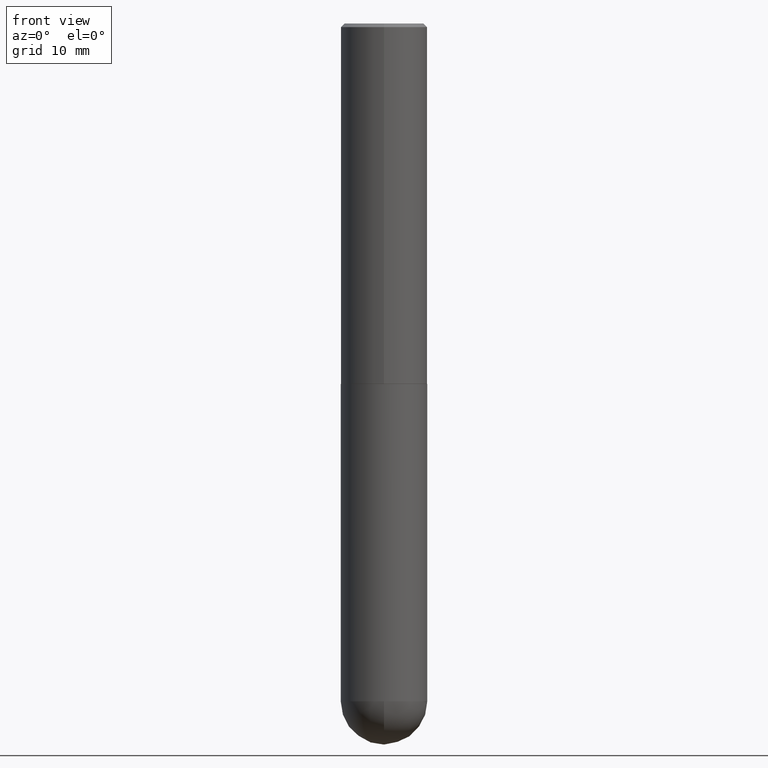
[diagram: clean part render]
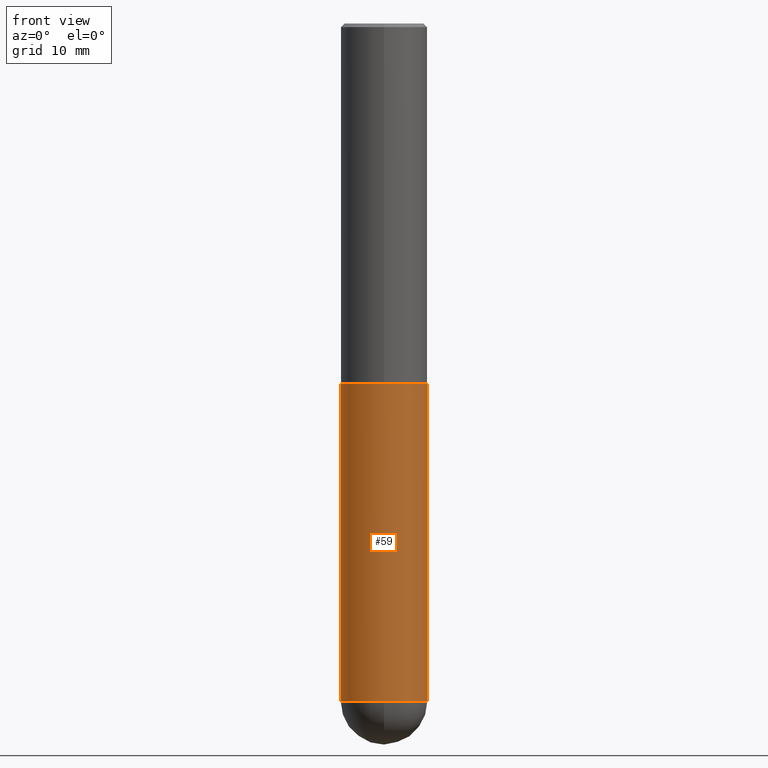
[diagram: same view with one face highlighted and labeled with its STEP entity id]
A machine part, front view. The second image highlights one B-rep face of the part: STEP entity #59.
In plain terms, the highlighted cylindrical surface (partial cylindrical patch) has radius 5.9995 mm, axis along (-0, 0, 1).
Its self-contained STEP definition (entity closure, byte-faithful):
#13 = DIRECTION ( 'NONE',  ( 1.000000000000000000, -6.982962677686265133E-15, 0.000000000000000000 ) ) ;
#36 = CARTESIAN_POINT ( 'NONE',  ( 9.050190957929953666E-29, -1.292127413879071357E-14, -3.700800000000000090 ) ) ;
#40 = CARTESIAN_POINT ( 'NONE',  ( -0.2361999999999999933, 1.678301941865356591E-15, -1.161852468318208757E-29 ) ) ;
#44 = DIRECTION ( 'NONE',  ( -2.445468806185136597E-29, 3.491481338843145583E-15, 1.000000000000000000 ) ) ;
#56 = VERTEX_POINT ( 'NONE', #347 ) ;
#59 = ADVANCED_FACE ( 'NONE', ( #346 ), #378, .T. ) ;
#65 = DIRECTION ( 'NONE',  ( 1.000000000000000000, -6.982962677686266711E-15, 4.876176775795936353E-29 ) ) ;
#72 = CARTESIAN_POINT ( 'NONE',  ( 0.2361999999999999933, -1.649375784469496131E-15, 1.151752954443000088E-29 ) ) ;
#78 = EDGE_CURVE ( 'NONE', #270, #56, #364, .T. ) ;
#91 = CARTESIAN_POINT ( 'NONE',  ( 0.000000000000000000, 0.000000000000000000, 0.000000000000000000 ) ) ;
#99 = CIRCLE ( 'NONE', #121, 0.2361999999999999933 ) ;
#121 = AXIS2_PLACEMENT_3D ( 'NONE', #266, #289, #13 ) ;
#122 = EDGE_CURVE ( 'NONE', #195, #161, #249, .T. ) ;
#143 = ORIENTED_EDGE ( 'NONE', *, *, #78, .T. ) ;
#157 = AXIS2_PLACEMENT_3D ( 'NONE', #36, #341, #384 ) ;
#161 = VERTEX_POINT ( 'NONE', #348 ) ;
#168 = VECTOR ( 'NONE', #329, 39.37007874015748143 ) ;
#175 = EDGE_CURVE ( 'NONE', #161, #200, #193, .T. ) ;
#186 = DIRECTION ( 'NONE',  ( 1.000000000000000000, -6.982962677686269077E-15, 0.000000000000000000 ) ) ;
#193 = CIRCLE ( 'NONE', #288, 0.2361999999999999933 ) ;
#195 = VERTEX_POINT ( 'NONE', #228 ) ;
#200 = VERTEX_POINT ( 'NONE', #361 ) ;
#211 = DIRECTION ( 'NONE',  ( -2.445468806185136597E-29, 3.491481338843145583E-15, 1.000000000000000000 ) ) ;
#214 = DIRECTION ( 'NONE',  ( -2.445468806185136877E-29, 3.491481338843145188E-15, 1.000000000000000000 ) ) ;
#220 = CARTESIAN_POINT ( 'NONE',  ( 4.813905344975441835E-29, -6.872981015512731707E-15, -1.968500000000000139 ) ) ;
#223 = CARTESIAN_POINT ( 'NONE',  ( -1.678301941865268633E-15, -0.2362000000000132882, -3.700799999999998757 ) ) ;
#228 = CARTESIAN_POINT ( 'NONE',  ( -0.2361999999999999933, -8.218825635286368613E-15, -3.700800000000000090 ) ) ;
#238 = ORIENTED_EDGE ( 'NONE', *, *, #351, .T. ) ;
#241 = ORIENTED_EDGE ( 'NONE', *, *, #175, .F. ) ;
#249 = LINE ( 'NONE', #40, #400 ) ;
#254 = ORIENTED_EDGE ( 'NONE', *, *, #313, .T. ) ;
#266 = CARTESIAN_POINT ( 'NONE',  ( 9.050190957929953666E-29, -1.292127413879071357E-14, -3.700800000000000090 ) ) ;
#270 = VERTEX_POINT ( 'NONE', #223 ) ;
#287 = LINE ( 'NONE', #72, #168 ) ;
#288 = AXIS2_PLACEMENT_3D ( 'NONE', #220, #44, #186 ) ;
#289 = DIRECTION ( 'NONE',  ( -2.445468806185136597E-29, 3.491481338843145583E-15, 1.000000000000000000 ) ) ;
#293 = EDGE_LOOP ( 'NONE', ( #318, #238, #143, #254, #241 ) ) ;
#313 = EDGE_CURVE ( 'NONE', #56, #200, #287, .T. ) ;
#318 = ORIENTED_EDGE ( 'NONE', *, *, #122, .F. ) ;
#326 = AXIS2_PLACEMENT_3D ( 'NONE', #91, #211, #65 ) ;
#329 = DIRECTION ( 'NONE',  ( -2.445468806185136877E-29, 3.491481338843145188E-15, 1.000000000000000000 ) ) ;
#341 = DIRECTION ( 'NONE',  ( -2.445468806185136597E-29, 3.491481338843145583E-15, 1.000000000000000000 ) ) ;
#346 = FACE_OUTER_BOUND ( 'NONE', #293, .T. ) ;
#347 = CARTESIAN_POINT ( 'NONE',  ( 0.2361999999999999933, -1.154650336162122153E-14, -3.700800000000000090 ) ) ;
#348 = CARTESIAN_POINT ( 'NONE',  ( -0.2361999999999999933, -8.218825635286365458E-15, -1.968500000000000139 ) ) ;
#351 = EDGE_CURVE ( 'NONE', #195, #270, #99, .T. ) ;
#361 = CARTESIAN_POINT ( 'NONE',  ( 0.2361999999999999933, -8.522356799982228232E-15, -1.968500000000000139 ) ) ;
#364 = CIRCLE ( 'NONE', #157, 0.2361999999999999933 ) ;
#378 = CYLINDRICAL_SURFACE ( 'NONE', #326, 0.2361999999999999933 ) ;
#384 = DIRECTION ( 'NONE',  ( 1.000000000000000000, -6.982962677686265133E-15, 0.000000000000000000 ) ) ;
#400 = VECTOR ( 'NONE', #214, 39.37007874015748143 ) ;